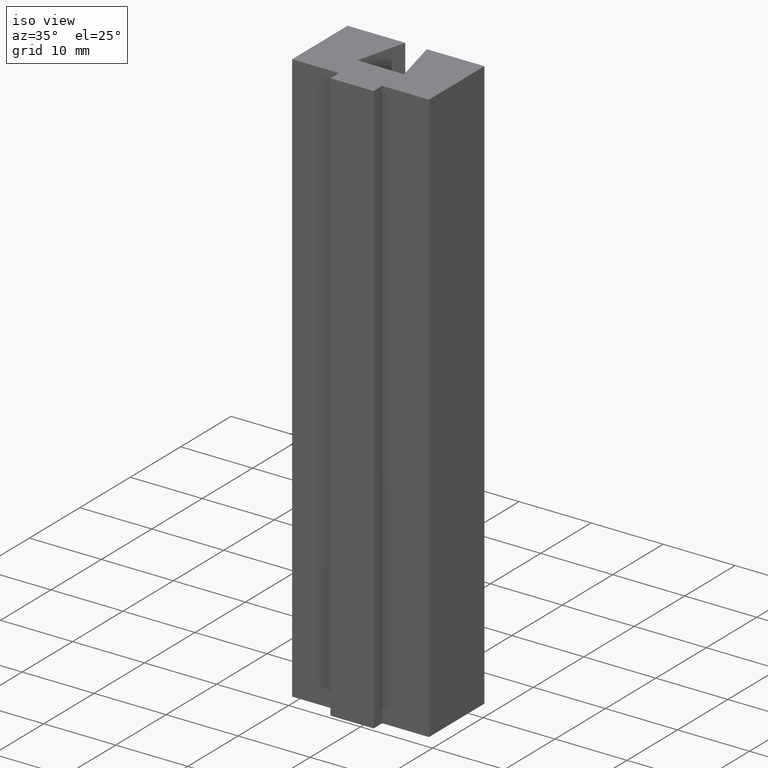
[diagram: clean part render]
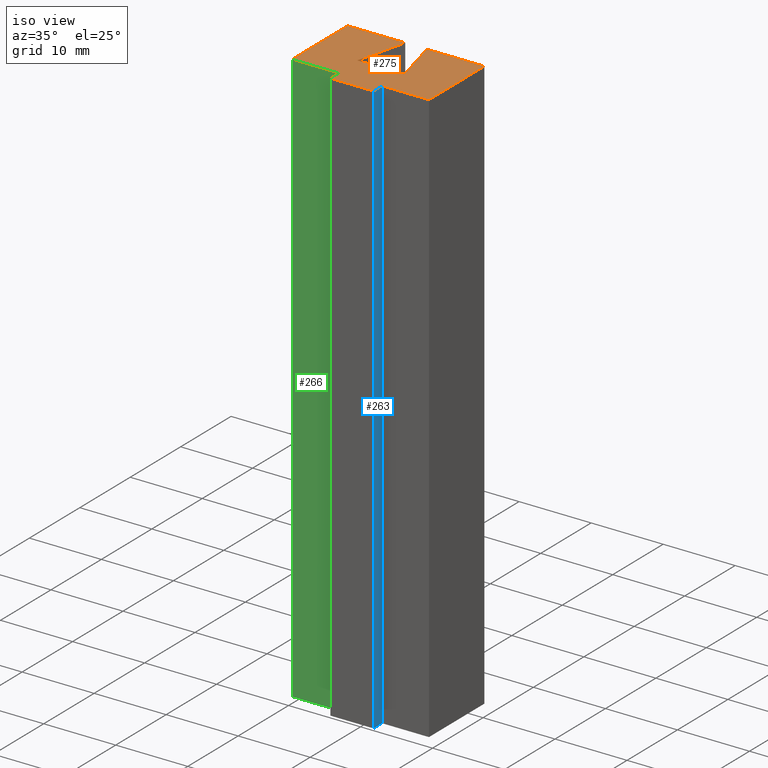
[diagram: same view with three faces highlighted in distinct colors, each labeled with its STEP entity id]
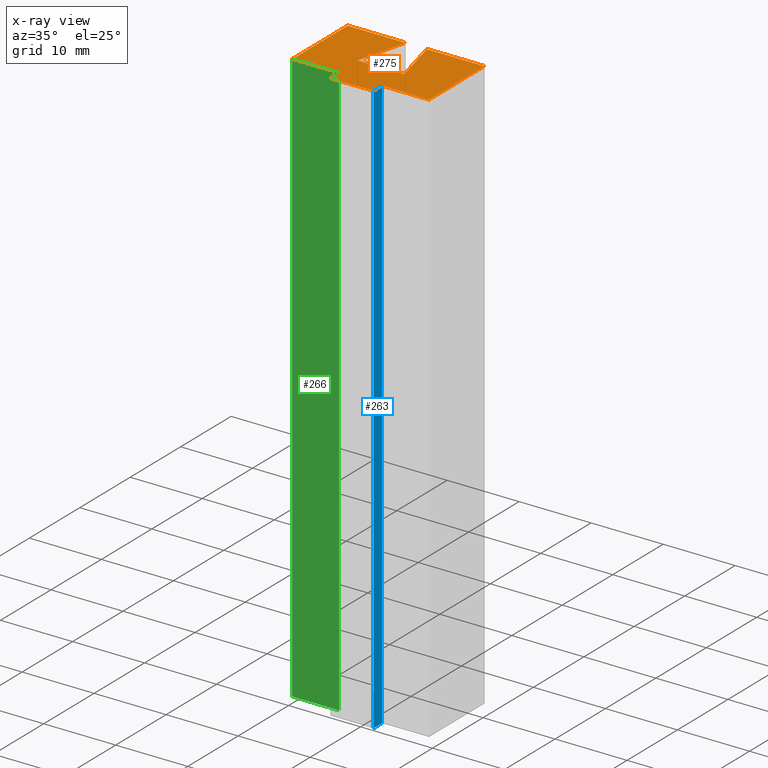
[diagram: x-ray of the same camera — body ghosted, the three highlighted faces saturated]
A machine part, iso view with three faces highlighted in distinct colors.
The next image is the same camera in x-ray (body ghosted, the three faces saturated) — at least one of them is partly hidden behind the body in this view.
Their STEP definitions:

[orange] entity #275 — the highlighted planar face has unit normal (0, 0, 1).
#29=FACE_OUTER_BOUND('',#43,.T.);
#43=EDGE_LOOP('',(#236,#237,#238,#239,#240,#241,#242,#243,#244,#245,#246,
#247));
#56=LINE('',#408,#92);
#59=LINE('',#413,#95);
#61=LINE('',#417,#97);
#63=LINE('',#421,#99);
#65=LINE('',#425,#101);
#67=LINE('',#429,#103);
#69=LINE('',#433,#105);
#71=LINE('',#437,#107);
#73=LINE('',#441,#109);
#75=LINE('',#445,#111);
#77=LINE('',#449,#113);
#79=LINE('',#452,#115);
#92=VECTOR('',#331,10.);
#95=VECTOR('',#336,10.);
#97=VECTOR('',#340,10.);
#99=VECTOR('',#344,10.);
#101=VECTOR('',#348,10.);
#103=VECTOR('',#352,10.);
#105=VECTOR('',#356,10.);
#107=VECTOR('',#360,10.);
#109=VECTOR('',#364,10.);
#111=VECTOR('',#368,10.);
#113=VECTOR('',#372,10.);
#115=VECTOR('',#376,10.);
#128=VERTEX_POINT('',#406);
#129=VERTEX_POINT('',#407);
#130=VERTEX_POINT('',#412);
#131=VERTEX_POINT('',#416);
#132=VERTEX_POINT('',#420);
#133=VERTEX_POINT('',#424);
#134=VERTEX_POINT('',#428);
#135=VERTEX_POINT('',#432);
#136=VERTEX_POINT('',#436);
#137=VERTEX_POINT('',#440);
#138=VERTEX_POINT('',#444);
#139=VERTEX_POINT('',#448);
#152=EDGE_CURVE('',#128,#129,#56,.T.);
#155=EDGE_CURVE('',#129,#130,#59,.T.);
#157=EDGE_CURVE('',#130,#131,#61,.T.);
#159=EDGE_CURVE('',#131,#132,#63,.T.);
#161=EDGE_CURVE('',#132,#133,#65,.T.);
#163=EDGE_CURVE('',#133,#134,#67,.T.);
#165=EDGE_CURVE('',#134,#135,#69,.T.);
#167=EDGE_CURVE('',#135,#136,#71,.T.);
#169=EDGE_CURVE('',#136,#137,#73,.T.);
#171=EDGE_CURVE('',#137,#138,#75,.T.);
#173=EDGE_CURVE('',#138,#139,#77,.T.);
#175=EDGE_CURVE('',#139,#128,#79,.T.);
#236=ORIENTED_EDGE('',*,*,#152,.F.);
#237=ORIENTED_EDGE('',*,*,#175,.F.);
#238=ORIENTED_EDGE('',*,*,#173,.F.);
#239=ORIENTED_EDGE('',*,*,#171,.F.);
#240=ORIENTED_EDGE('',*,*,#169,.F.);
#241=ORIENTED_EDGE('',*,*,#167,.F.);
#242=ORIENTED_EDGE('',*,*,#165,.F.);
#243=ORIENTED_EDGE('',*,*,#163,.F.);
#244=ORIENTED_EDGE('',*,*,#161,.F.);
#245=ORIENTED_EDGE('',*,*,#159,.F.);
#246=ORIENTED_EDGE('',*,*,#157,.F.);
#247=ORIENTED_EDGE('',*,*,#155,.F.);
#261=PLANE('',#312);
#275=ADVANCED_FACE('',(#29),#261,.T.);
#312=AXIS2_PLACEMENT_3D('',#453,#377,#378);
#331=DIRECTION('',(-1.30614473485312E-15,-1.,0.));
#336=DIRECTION('',(-1.,0.,0.));
#340=DIRECTION('',(-1.30614473485312E-15,1.,0.));
#344=DIRECTION('',(-1.,-5.11511478940699E-16,0.));
#348=DIRECTION('',(0.,1.,0.));
#352=DIRECTION('',(1.,2.77555756156289E-16,0.));
#356=DIRECTION('',(-0.242535625036333,-0.970142500145332,0.));
#360=DIRECTION('',(1.,0.,0.));
#364=DIRECTION('',(-0.242535625036333,0.970142500145332,0.));
#368=DIRECTION('',(1.,-2.77555756156289E-16,0.));
#372=DIRECTION('',(0.,-1.,0.));
#376=DIRECTION('',(-1.,5.11511478940699E-16,0.));
#377=DIRECTION('center_axis',(0.,0.,1.));
#378=DIRECTION('ref_axis',(1.,0.,0.));
#406=CARTESIAN_POINT('',(3.,3.32482461311454E-15,40.));
#407=CARTESIAN_POINT('',(3.,-1.7,40.));
#408=CARTESIAN_POINT('',(3.,3.32482461311454E-15,40.));
#412=CARTESIAN_POINT('',(-3.,-1.7,40.));
#413=CARTESIAN_POINT('',(3.,-1.7,40.));
#416=CARTESIAN_POINT('',(-3.,3.32482461311454E-15,40.));
#417=CARTESIAN_POINT('',(-3.,-1.7,40.));
#420=CARTESIAN_POINT('',(-9.50000000000001,0.,40.));
#421=CARTESIAN_POINT('',(-3.,3.32482461311454E-15,40.));
#424=CARTESIAN_POINT('',(-9.50000000000001,11.,40.));
#425=CARTESIAN_POINT('',(-9.50000000000001,0.,40.));
#428=CARTESIAN_POINT('',(-1.5,11.,40.));
#429=CARTESIAN_POINT('',(-9.50000000000001,11.,40.));
#432=CARTESIAN_POINT('',(-3.25,4.,40.));
#433=CARTESIAN_POINT('',(-1.5,11.,40.));
#436=CARTESIAN_POINT('',(3.25,4.,40.));
#437=CARTESIAN_POINT('',(-3.25,4.,40.));
#440=CARTESIAN_POINT('',(1.5,11.,40.));
#441=CARTESIAN_POINT('',(3.25,4.,40.));
#444=CARTESIAN_POINT('',(9.50000000000001,11.,40.));
#445=CARTESIAN_POINT('',(1.5,11.,40.));
#448=CARTESIAN_POINT('',(9.50000000000001,0.,40.));
#449=CARTESIAN_POINT('',(9.50000000000001,11.,40.));
#452=CARTESIAN_POINT('',(9.50000000000001,0.,40.));
#453=CARTESIAN_POINT('Origin',(6.76542155630955E-16,5.14124002691705,40.));

[blue] entity #263 — the highlighted planar face has unit normal (1, -0, 0).
#17=FACE_OUTER_BOUND('',#31,.T.);
#31=EDGE_LOOP('',(#188,#189,#190,#191));
#46=LINE('',#387,#82);
#56=LINE('',#408,#92);
#57=LINE('',#409,#93);
#58=LINE('',#410,#94);
#82=VECTOR('',#319,10.);
#92=VECTOR('',#331,10.);
#93=VECTOR('',#332,10.);
#94=VECTOR('',#333,10.);
#118=VERTEX_POINT('',#384);
#119=VERTEX_POINT('',#386);
#128=VERTEX_POINT('',#406);
#129=VERTEX_POINT('',#407);
#142=EDGE_CURVE('',#119,#118,#46,.T.);
#152=EDGE_CURVE('',#128,#129,#56,.T.);
#153=EDGE_CURVE('',#129,#119,#57,.T.);
#154=EDGE_CURVE('',#128,#118,#58,.T.);
#188=ORIENTED_EDGE('',*,*,#152,.T.);
#189=ORIENTED_EDGE('',*,*,#153,.T.);
#190=ORIENTED_EDGE('',*,*,#142,.T.);
#191=ORIENTED_EDGE('',*,*,#154,.F.);
#249=PLANE('',#300);
#263=ADVANCED_FACE('',(#17),#249,.T.);
#300=AXIS2_PLACEMENT_3D('',#405,#329,#330);
#319=DIRECTION('',(1.30614473485312E-15,1.,0.));
#329=DIRECTION('center_axis',(1.,-1.30614473485312E-15,0.));
#330=DIRECTION('ref_axis',(0.,0.,-1.));
#331=DIRECTION('',(-1.30614473485312E-15,-1.,0.));
#332=DIRECTION('',(0.,0.,-1.));
#333=DIRECTION('',(0.,0.,-1.));
#384=CARTESIAN_POINT('',(3.,3.32482461311454E-15,-40.));
#386=CARTESIAN_POINT('',(3.,-1.7,-40.));
#387=CARTESIAN_POINT('',(3.,3.32482461311454E-15,-40.));
#405=CARTESIAN_POINT('Origin',(3.,3.32482461311454E-15,0.));
#406=CARTESIAN_POINT('',(3.,3.32482461311454E-15,40.));
#407=CARTESIAN_POINT('',(3.,-1.7,40.));
#408=CARTESIAN_POINT('',(3.,3.32482461311454E-15,40.));
#409=CARTESIAN_POINT('',(3.,-1.7,0.));
#410=CARTESIAN_POINT('',(3.,3.32482461311454E-15,0.));

[green] entity #266 — the highlighted planar face has unit normal (0, -1, 0).
#20=FACE_OUTER_BOUND('',#34,.T.);
#34=EDGE_LOOP('',(#200,#201,#202,#203));
#49=LINE('',#393,#85);
#62=LINE('',#418,#98);
#63=LINE('',#421,#99);
#64=LINE('',#422,#100);
#85=VECTOR('',#322,10.);
#98=VECTOR('',#341,10.);
#99=VECTOR('',#344,10.);
#100=VECTOR('',#345,10.);
#121=VERTEX_POINT('',#390);
#122=VERTEX_POINT('',#392);
#131=VERTEX_POINT('',#416);
#132=VERTEX_POINT('',#420);
#145=EDGE_CURVE('',#122,#121,#49,.T.);
#158=EDGE_CURVE('',#131,#121,#62,.T.);
#159=EDGE_CURVE('',#131,#132,#63,.T.);
#160=EDGE_CURVE('',#132,#122,#64,.T.);
#200=ORIENTED_EDGE('',*,*,#159,.T.);
#201=ORIENTED_EDGE('',*,*,#160,.T.);
#202=ORIENTED_EDGE('',*,*,#145,.T.);
#203=ORIENTED_EDGE('',*,*,#158,.F.);
#252=PLANE('',#303);
#266=ADVANCED_FACE('',(#20),#252,.T.);
#303=AXIS2_PLACEMENT_3D('',#419,#342,#343);
#322=DIRECTION('',(1.,5.11511478940699E-16,0.));
#341=DIRECTION('',(0.,0.,-1.));
#342=DIRECTION('center_axis',(5.11511478940699E-16,-1.,0.));
#343=DIRECTION('ref_axis',(0.,0.,-1.));
#344=DIRECTION('',(-1.,-5.11511478940699E-16,0.));
#345=DIRECTION('',(0.,0.,-1.));
#390=CARTESIAN_POINT('',(-3.,3.32482461311454E-15,-40.));
#392=CARTESIAN_POINT('',(-9.50000000000001,0.,-40.));
#393=CARTESIAN_POINT('',(-3.,3.32482461311454E-15,-40.));
#416=CARTESIAN_POINT('',(-3.,3.32482461311454E-15,40.));
#418=CARTESIAN_POINT('',(-3.,3.32482461311454E-15,0.));
#419=CARTESIAN_POINT('Origin',(-3.,3.32482461311454E-15,0.));
#420=CARTESIAN_POINT('',(-9.50000000000001,0.,40.));
#421=CARTESIAN_POINT('',(-3.,3.32482461311454E-15,40.));
#422=CARTESIAN_POINT('',(-9.50000000000001,0.,0.));